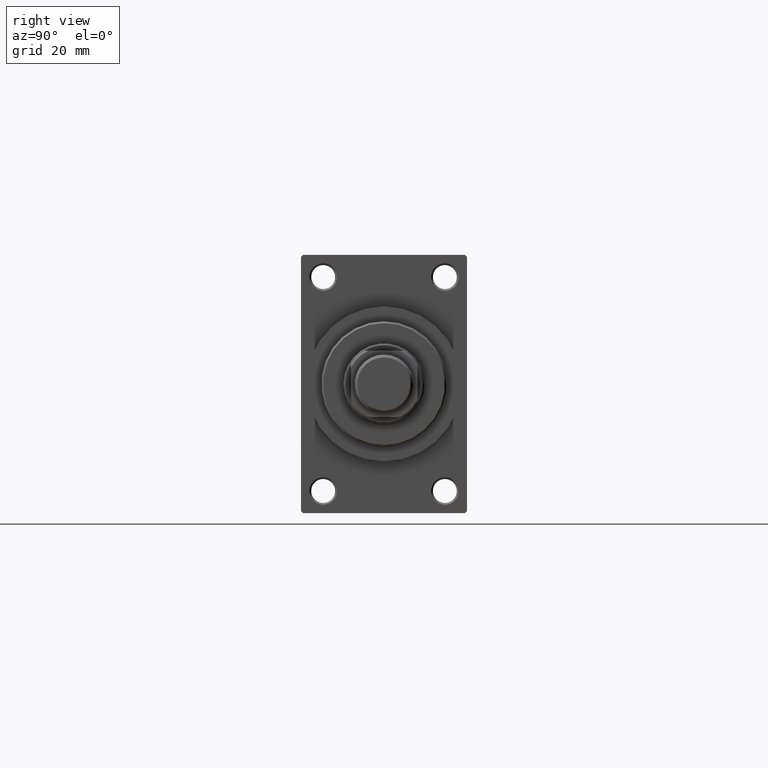
[diagram: clean part render]
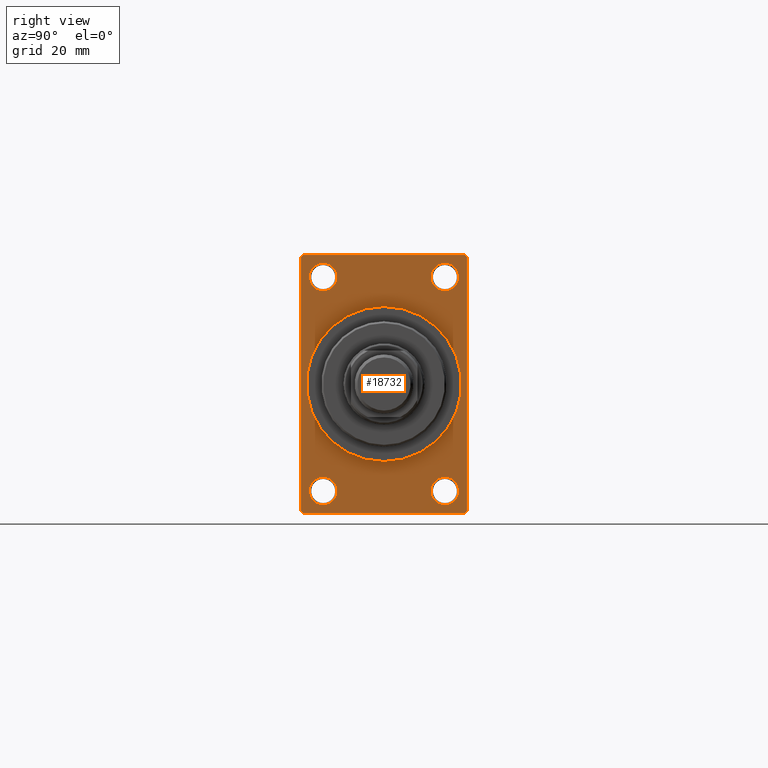
[diagram: same view with one face highlighted and labeled with its STEP entity id]
A machine part, right view. The second image highlights one B-rep face of the part: STEP entity #18732.
In plain terms, the highlighted planar face has unit normal (-1, 0, 0).
Its self-contained STEP definition (entity closure, byte-faithful):
#14 = AXIS2_PLACEMENT_3D ( 'NONE', #29892, #14739, #7746 ) ;
#228 = EDGE_CURVE ( 'NONE', #45300, #429, #6159, .T. ) ;
#412 = AXIS2_PLACEMENT_3D ( 'NONE', #46823, #47056, #42954 ) ;
#429 = VERTEX_POINT ( 'NONE', #24107 ) ;
#564 = CARTESIAN_POINT ( 'NONE',  ( 113.0000000000000142, -22.50000000000000355, 34.50000000000000000 ) ) ;
#588 = CARTESIAN_POINT ( 'NONE',  ( 113.0000000000000142, 22.49999999999999645, 34.50000000000000000 ) ) ;
#768 = CARTESIAN_POINT ( 'NONE',  ( 113.0000000000000142, 22.49999999999999645, -34.50000000000000000 ) ) ;
#1179 = CIRCLE ( 'NONE', #30395, 3.750000000000076383 ) ;
#1215 = VECTOR ( 'NONE', #26016, 1000.000000000000114 ) ;
#1393 = CIRCLE ( 'NONE', #12122, 21.00000000000000000 ) ;
#1460 = ORIENTED_EDGE ( 'NONE', *, *, #9006, .T. ) ;
#1717 = VECTOR ( 'NONE', #14760, 1000.000000000000114 ) ;
#1748 = VECTOR ( 'NONE', #19470, 1000.000000000000000 ) ;
#1854 = ORIENTED_EDGE ( 'NONE', *, *, #16332, .T. ) ;
#2065 = LINE ( 'NONE', #31884, #11834 ) ;
#2413 = EDGE_LOOP ( 'NONE', ( #5160, #37864, #9982, #1460, #10569, #33247, #40297, #2782 ) ) ;
#2538 = CARTESIAN_POINT ( 'NONE',  ( 113.0000000000000142, -16.50000000000000000, 25.24999999999993960 ) ) ;
#2782 = ORIENTED_EDGE ( 'NONE', *, *, #4539, .T. ) ;
#3335 = DIRECTION ( 'NONE',  ( 0.000000000000000000, 0.000000000000000000, -1.000000000000000000 ) ) ;
#4321 = CIRCLE ( 'NONE', #6615, 3.750000000000076383 ) ;
#4539 = EDGE_CURVE ( 'NONE', #46472, #23572, #33514, .T. ) ;
#4889 = EDGE_CURVE ( 'NONE', #28512, #46472, #5490, .T. ) ;
#5160 = ORIENTED_EDGE ( 'NONE', *, *, #5400, .T. ) ;
#5400 = EDGE_CURVE ( 'NONE', #23572, #36652, #35476, .T. ) ;
#5490 = LINE ( 'NONE', #23562, #1748 ) ;
#6159 = CIRCLE ( 'NONE', #14, 3.750000000000076383 ) ;
#6241 = LINE ( 'NONE', #35837, #32579 ) ;
#6380 = VERTEX_POINT ( 'NONE', #768 ) ;
#6400 = CIRCLE ( 'NONE', #21784, 21.00000000000000000 ) ;
#6487 = VERTEX_POINT ( 'NONE', #46698 ) ;
#6615 = AXIS2_PLACEMENT_3D ( 'NONE', #16480, #41722, #24151 ) ;
#7299 = CIRCLE ( 'NONE', #412, 3.750000000000076383 ) ;
#7746 = DIRECTION ( 'NONE',  ( 0.000000000000000000, 0.000000000000000000, 1.000000000000000000 ) ) ;
#8414 = EDGE_LOOP ( 'NONE', ( #45825, #30966 ) ) ;
#8429 = EDGE_CURVE ( 'NONE', #21314, #47047, #24882, .T. ) ;
#9006 = EDGE_CURVE ( 'NONE', #34024, #6380, #2065, .T. ) ;
#9776 = CARTESIAN_POINT ( 'NONE',  ( 113.0000000000000142, -21.99999999999997513, -35.00000000000000000 ) ) ;
#9982 = ORIENTED_EDGE ( 'NONE', *, *, #40405, .F. ) ;
#10122 = EDGE_CURVE ( 'NONE', #41974, #44993, #28014, .T. ) ;
#10229 = ORIENTED_EDGE ( 'NONE', *, *, #31398, .T. ) ;
#10398 = DIRECTION ( 'NONE',  ( 0.000000000000000000, 0.000000000000000000, 1.000000000000000000 ) ) ;
#10491 = EDGE_CURVE ( 'NONE', #44993, #41974, #42524, .T. ) ;
#10569 = ORIENTED_EDGE ( 'NONE', *, *, #40903, .F. ) ;
#10796 = DIRECTION ( 'NONE',  ( 1.000000000000000000, 0.000000000000000000, 0.000000000000000000 ) ) ;
#10868 = CARTESIAN_POINT ( 'NONE',  ( 113.0000000000000142, 21.99999999999999645, 35.00000000000000000 ) ) ;
#11834 = VECTOR ( 'NONE', #46580, 1000.000000000000114 ) ;
#12100 = DIRECTION ( 'NONE',  ( -1.000000000000000000, -0.000000000000000000, -0.000000000000000000 ) ) ;
#12122 = AXIS2_PLACEMENT_3D ( 'NONE', #36064, #10796, #3335 ) ;
#12248 = VERTEX_POINT ( 'NONE', #17043 ) ;
#12489 = DIRECTION ( 'NONE',  ( -1.000000000000000000, 0.000000000000000000, -0.000000000000000000 ) ) ;
#13105 = DIRECTION ( 'NONE',  ( 0.000000000000000000, 0.000000000000000000, -1.000000000000000000 ) ) ;
#13335 = CARTESIAN_POINT ( 'NONE',  ( 113.0000000000000142, 0.000000000000000000, 0.000000000000000000 ) ) ;
#13342 = CARTESIAN_POINT ( 'NONE',  ( 113.0000000000000142, -22.50000000000000355, 35.00000000000000000 ) ) ;
#13556 = LINE ( 'NONE', #35688, #39787 ) ;
#14001 = CARTESIAN_POINT ( 'NONE',  ( 113.0000000000000142, 16.50000000000000000, 29.00000000000000355 ) ) ;
#14739 = DIRECTION ( 'NONE',  ( -1.000000000000000000, -0.000000000000000000, -0.000000000000000000 ) ) ;
#14760 = DIRECTION ( 'NONE',  ( -0.000000000000000000, -0.7071067811865474617, -0.7071067811865474617 ) ) ;
#15338 = ORIENTED_EDGE ( 'NONE', *, *, #31298, .T. ) ;
#16277 = AXIS2_PLACEMENT_3D ( 'NONE', #45472, #12489, #41364 ) ;
#16332 = EDGE_CURVE ( 'NONE', #47047, #21314, #23833, .T. ) ;
#16383 = CARTESIAN_POINT ( 'NONE',  ( 113.0000000000000142, 16.50000000000000000, 32.75000000000007816 ) ) ;
#16480 = CARTESIAN_POINT ( 'NONE',  ( 113.0000000000000142, 16.50000000000000000, -28.99999999999999289 ) ) ;
#17043 = CARTESIAN_POINT ( 'NONE',  ( 113.0000000000000142, -16.50000000000000000, -25.24999999999992184 ) ) ;
#17232 = EDGE_LOOP ( 'NONE', ( #47233, #31654 ) ) ;
#17264 = AXIS2_PLACEMENT_3D ( 'NONE', #43043, #17319, #46440 ) ;
#17319 = DIRECTION ( 'NONE',  ( -1.000000000000000000, -0.000000000000000000, -0.000000000000000000 ) ) ;
#18488 = AXIS2_PLACEMENT_3D ( 'NONE', #45076, #12100, #23182 ) ;
#18623 = DIRECTION ( 'NONE',  ( 0.000000000000000000, 0.000000000000000000, 1.000000000000000000 ) ) ;
#18732 = ADVANCED_FACE ( 'NONE', ( #41116, #19970, #19730, #22852, #26697, #41603 ), #37997, .F. ) ;
#18819 = AXIS2_PLACEMENT_3D ( 'NONE', #21289, #39559, #18623 ) ;
#19470 = DIRECTION ( 'NONE',  ( 0.000000000000000000, -1.000000000000000000, 0.000000000000000000 ) ) ;
#19565 = AXIS2_PLACEMENT_3D ( 'NONE', #14001, #28928, #10398 ) ;
#19730 = FACE_BOUND ( 'NONE', #8414, .T. ) ;
#19970 = FACE_BOUND ( 'NONE', #41732, .T. ) ;
#20595 = ORIENTED_EDGE ( 'NONE', *, *, #10491, .T. ) ;
#20751 = CARTESIAN_POINT ( 'NONE',  ( 113.0000000000000142, 22.49999999999999645, -35.00000000000000000 ) ) ;
#20850 = CARTESIAN_POINT ( 'NONE',  ( 113.0000000000000142, -21.99999999999998934, 35.00000000000000000 ) ) ;
#21289 = CARTESIAN_POINT ( 'NONE',  ( 113.0000000000000142, -16.50000000000000000, 29.00000000000000711 ) ) ;
#21314 = VERTEX_POINT ( 'NONE', #35698 ) ;
#21784 = AXIS2_PLACEMENT_3D ( 'NONE', #13335, #23956, #13105 ) ;
#21978 = CARTESIAN_POINT ( 'NONE',  ( 113.0000000000000142, -16.50000000000000000, 32.75000000000007816 ) ) ;
#22852 = FACE_BOUND ( 'NONE', #40164, .T. ) ;
#22870 = CARTESIAN_POINT ( 'NONE',  ( 113.0000000000000142, -16.50000000000000000, -32.75000000000007105 ) ) ;
#23182 = DIRECTION ( 'NONE',  ( 0.000000000000000000, 0.000000000000000000, 1.000000000000000000 ) ) ;
#23562 = CARTESIAN_POINT ( 'NONE',  ( 113.0000000000000142, 22.49999999999999645, 35.00000000000000000 ) ) ;
#23572 = VERTEX_POINT ( 'NONE', #24135 ) ;
#23759 = VECTOR ( 'NONE', #35411, 1000.000000000000000 ) ;
#23833 = CIRCLE ( 'NONE', #18488, 3.750000000000072831 ) ;
#23956 = DIRECTION ( 'NONE',  ( 1.000000000000000000, 0.000000000000000000, 0.000000000000000000 ) ) ;
#24107 = CARTESIAN_POINT ( 'NONE',  ( 113.0000000000000142, 16.50000000000000000, -25.24999999999992184 ) ) ;
#24135 = CARTESIAN_POINT ( 'NONE',  ( 113.0000000000000142, -22.50000000000000355, 34.50000000000000000 ) ) ;
#24151 = DIRECTION ( 'NONE',  ( 0.000000000000000000, 0.000000000000000000, 1.000000000000000000 ) ) ;
#24427 = DIRECTION ( 'NONE',  ( 0.000000000000000000, 0.000000000000000000, -1.000000000000000000 ) ) ;
#24882 = CIRCLE ( 'NONE', #19565, 3.750000000000072831 ) ;
#26016 = DIRECTION ( 'NONE',  ( 0.000000000000000000, -0.7071067811865474617, 0.7071067811865474617 ) ) ;
#26090 = DIRECTION ( 'NONE',  ( -1.000000000000000000, -0.000000000000000000, -0.000000000000000000 ) ) ;
#26334 = VERTEX_POINT ( 'NONE', #22870 ) ;
#26697 = FACE_BOUND ( 'NONE', #17232, .T. ) ;
#26828 = DIRECTION ( 'NONE',  ( 0.000000000000000000, 0.000000000000000000, 1.000000000000000000 ) ) ;
#26900 = ORIENTED_EDGE ( 'NONE', *, *, #8429, .T. ) ;
#27320 = DIRECTION ( 'NONE',  ( 0.000000000000000000, 0.000000000000000000, -1.000000000000000000 ) ) ;
#27519 = EDGE_CURVE ( 'NONE', #32592, #6487, #6400, .T. ) ;
#27874 = CARTESIAN_POINT ( 'NONE',  ( 113.0000000000000142, 21.99999999999999645, -35.00000000000000000 ) ) ;
#28014 = CIRCLE ( 'NONE', #17264, 3.750000000000069278 ) ;
#28512 = VERTEX_POINT ( 'NONE', #36188 ) ;
#28928 = DIRECTION ( 'NONE',  ( -1.000000000000000000, -0.000000000000000000, -0.000000000000000000 ) ) ;
#29009 = EDGE_CURVE ( 'NONE', #36652, #42707, #6241, .T. ) ;
#29703 = ORIENTED_EDGE ( 'NONE', *, *, #10122, .T. ) ;
#29872 = CARTESIAN_POINT ( 'NONE',  ( 113.0000000000000142, 2.571758278209441661E-15, -21.00000000000000000 ) ) ;
#29892 = CARTESIAN_POINT ( 'NONE',  ( 113.0000000000000142, 16.50000000000000000, -28.99999999999999289 ) ) ;
#30109 = LINE ( 'NONE', #10868, #1215 ) ;
#30395 = AXIS2_PLACEMENT_3D ( 'NONE', #45118, #26090, #26828 ) ;
#30966 = ORIENTED_EDGE ( 'NONE', *, *, #33199, .T. ) ;
#31298 = EDGE_CURVE ( 'NONE', #12248, #26334, #7299, .T. ) ;
#31398 = EDGE_CURVE ( 'NONE', #26334, #12248, #1179, .T. ) ;
#31654 = ORIENTED_EDGE ( 'NONE', *, *, #27519, .F. ) ;
#31884 = CARTESIAN_POINT ( 'NONE',  ( 113.0000000000000142, 22.49999999999999645, -34.50000000000000000 ) ) ;
#32478 = CARTESIAN_POINT ( 'NONE',  ( 113.0000000000000142, 16.50000000000000000, -32.75000000000007105 ) ) ;
#32494 = EDGE_CURVE ( 'NONE', #39526, #28512, #30109, .T. ) ;
#32579 = VECTOR ( 'NONE', #46928, 999.9999999999998863 ) ;
#32592 = VERTEX_POINT ( 'NONE', #29872 ) ;
#33199 = EDGE_CURVE ( 'NONE', #429, #45300, #4321, .T. ) ;
#33247 = ORIENTED_EDGE ( 'NONE', *, *, #32494, .T. ) ;
#33514 = LINE ( 'NONE', #564, #1717 ) ;
#34024 = VERTEX_POINT ( 'NONE', #27874 ) ;
#34790 = VECTOR ( 'NONE', #24427, 1000.000000000000000 ) ;
#35411 = DIRECTION ( 'NONE',  ( 0.000000000000000000, -1.000000000000000000, 0.000000000000000000 ) ) ;
#35476 = LINE ( 'NONE', #13342, #34790 ) ;
#35688 = CARTESIAN_POINT ( 'NONE',  ( 113.0000000000000142, 22.49999999999999645, 35.00000000000000000 ) ) ;
#35698 = CARTESIAN_POINT ( 'NONE',  ( 113.0000000000000142, 16.50000000000000000, 25.24999999999993250 ) ) ;
#35837 = CARTESIAN_POINT ( 'NONE',  ( 113.0000000000000142, -21.99999999999998934, -35.00000000000000000 ) ) ;
#36064 = CARTESIAN_POINT ( 'NONE',  ( 113.0000000000000142, 0.000000000000000000, 0.000000000000000000 ) ) ;
#36188 = CARTESIAN_POINT ( 'NONE',  ( 113.0000000000000142, 21.99999999999999645, 35.00000000000000000 ) ) ;
#36652 = VERTEX_POINT ( 'NONE', #39911 ) ;
#36705 = EDGE_CURVE ( 'NONE', #6487, #32592, #1393, .T. ) ;
#37864 = ORIENTED_EDGE ( 'NONE', *, *, #29009, .T. ) ;
#37997 = PLANE ( 'NONE',  #16277 ) ;
#39037 = LINE ( 'NONE', #20751, #23759 ) ;
#39526 = VERTEX_POINT ( 'NONE', #588 ) ;
#39559 = DIRECTION ( 'NONE',  ( -1.000000000000000000, -0.000000000000000000, -0.000000000000000000 ) ) ;
#39787 = VECTOR ( 'NONE', #27320, 1000.000000000000000 ) ;
#39911 = CARTESIAN_POINT ( 'NONE',  ( 113.0000000000000142, -22.50000000000000355, -34.49999999999997158 ) ) ;
#40164 = EDGE_LOOP ( 'NONE', ( #26900, #1854 ) ) ;
#40297 = ORIENTED_EDGE ( 'NONE', *, *, #4889, .T. ) ;
#40405 = EDGE_CURVE ( 'NONE', #34024, #42707, #39037, .T. ) ;
#40903 = EDGE_CURVE ( 'NONE', #39526, #6380, #13556, .T. ) ;
#41116 = FACE_BOUND ( 'NONE', #44813, .T. ) ;
#41364 = DIRECTION ( 'NONE',  ( -0.000000000000000000, 0.000000000000000000, 1.000000000000000000 ) ) ;
#41603 = FACE_OUTER_BOUND ( 'NONE', #2413, .T. ) ;
#41722 = DIRECTION ( 'NONE',  ( -1.000000000000000000, -0.000000000000000000, -0.000000000000000000 ) ) ;
#41732 = EDGE_LOOP ( 'NONE', ( #10229, #15338 ) ) ;
#41974 = VERTEX_POINT ( 'NONE', #21978 ) ;
#42524 = CIRCLE ( 'NONE', #18819, 3.750000000000069278 ) ;
#42707 = VERTEX_POINT ( 'NONE', #9776 ) ;
#42954 = DIRECTION ( 'NONE',  ( 0.000000000000000000, 0.000000000000000000, 1.000000000000000000 ) ) ;
#43043 = CARTESIAN_POINT ( 'NONE',  ( 113.0000000000000142, -16.50000000000000000, 29.00000000000000711 ) ) ;
#44813 = EDGE_LOOP ( 'NONE', ( #20595, #29703 ) ) ;
#44993 = VERTEX_POINT ( 'NONE', #2538 ) ;
#45076 = CARTESIAN_POINT ( 'NONE',  ( 113.0000000000000142, 16.50000000000000000, 29.00000000000000355 ) ) ;
#45118 = CARTESIAN_POINT ( 'NONE',  ( 113.0000000000000142, -16.50000000000000000, -28.99999999999999289 ) ) ;
#45300 = VERTEX_POINT ( 'NONE', #32478 ) ;
#45472 = CARTESIAN_POINT ( 'NONE',  ( 113.0000000000000142, 0.000000000000000000, 0.000000000000000000 ) ) ;
#45825 = ORIENTED_EDGE ( 'NONE', *, *, #228, .T. ) ;
#46440 = DIRECTION ( 'NONE',  ( 0.000000000000000000, 0.000000000000000000, 1.000000000000000000 ) ) ;
#46472 = VERTEX_POINT ( 'NONE', #20850 ) ;
#46580 = DIRECTION ( 'NONE',  ( -0.000000000000000000, 0.7071067811865474617, 0.7071067811865474617 ) ) ;
#46698 = CARTESIAN_POINT ( 'NONE',  ( 113.0000000000000142, 0.000000000000000000, 21.00000000000000000 ) ) ;
#46823 = CARTESIAN_POINT ( 'NONE',  ( 113.0000000000000142, -16.50000000000000000, -28.99999999999999289 ) ) ;
#46928 = DIRECTION ( 'NONE',  ( 0.000000000000000000, 0.7071067811865376918, -0.7071067811865574537 ) ) ;
#47047 = VERTEX_POINT ( 'NONE', #16383 ) ;
#47056 = DIRECTION ( 'NONE',  ( -1.000000000000000000, -0.000000000000000000, -0.000000000000000000 ) ) ;
#47233 = ORIENTED_EDGE ( 'NONE', *, *, #36705, .F. ) ;